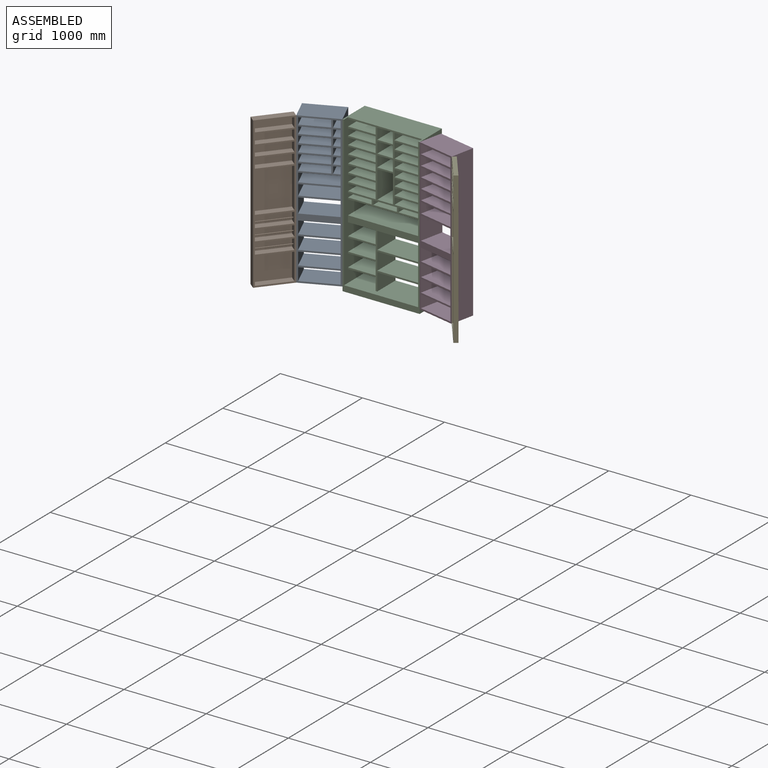
[diagram: assembled view]
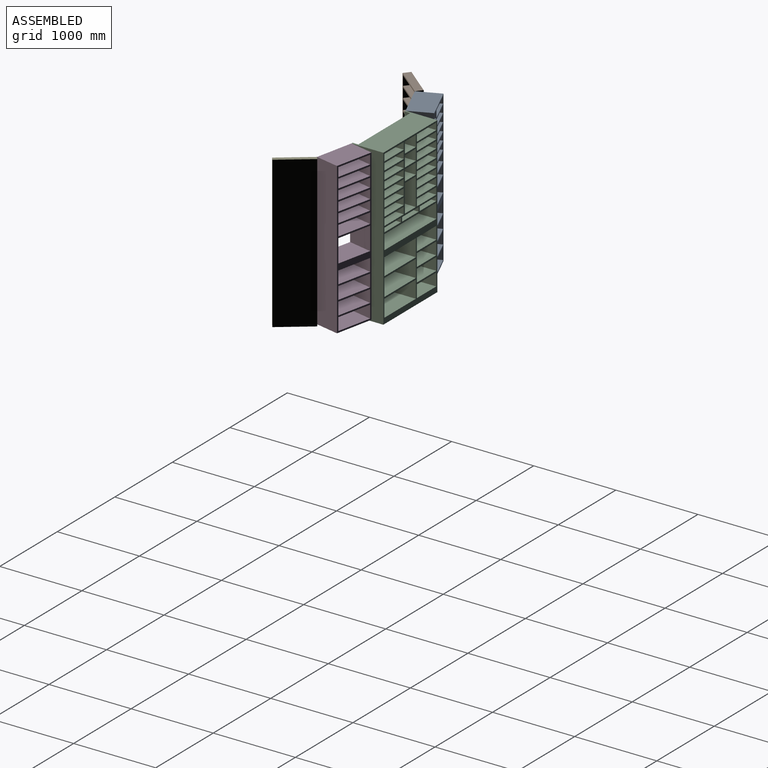
[diagram: assembled view, second angle]
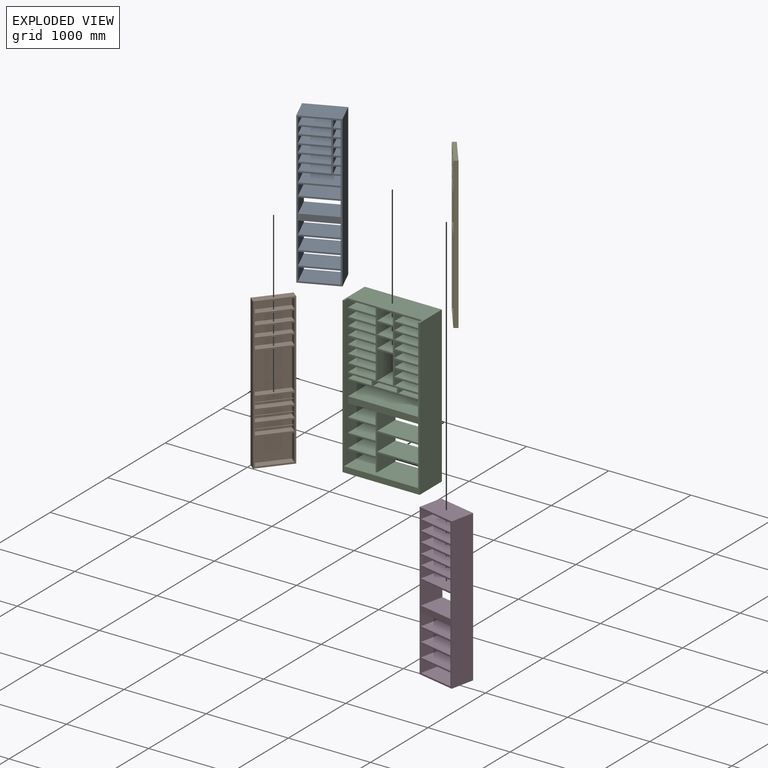
[diagram: exploded view]
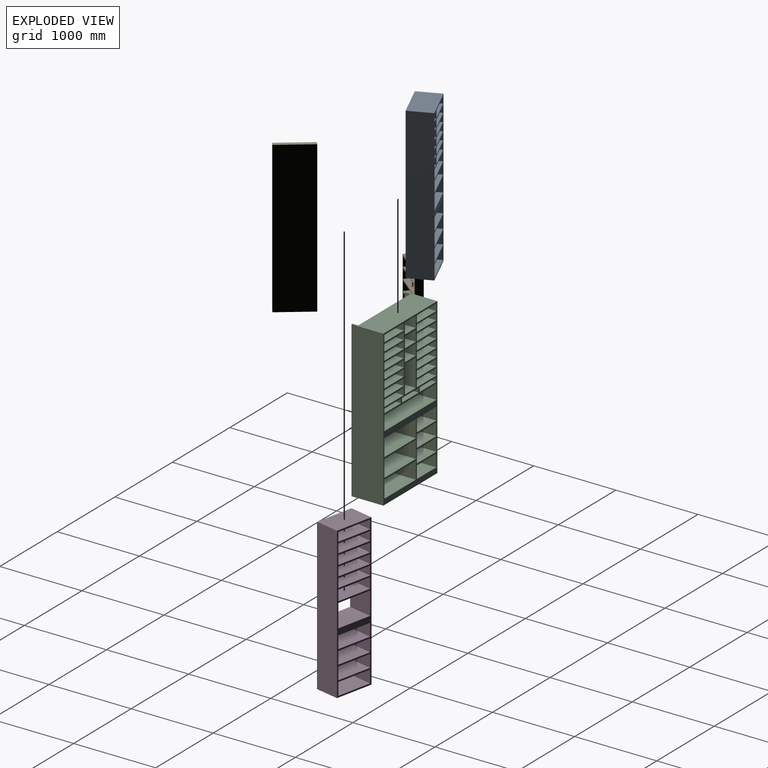
[diagram: exploded view, second angle]
ASSEMBLY  parts=5 mates=4
PART A: 82 faces, bbox 469.9x292.1x1841.5 mm
  f0: plane 292.1x76.2mm, normal (0,0,-1), area 22258mm2, adj f1,f79,f80,f81
  f1: plane 292.1x82.55mm, normal (-1,0,0), area 24112.9mm2, adj f0,f2,f80,f81
  f2: plane 292.1x76.2mm, normal (0,0,1), area 22258mm2, adj f1,f79,f80,f81
  f3: plane 336.55x292.1mm, normal (0,0,-1), area 98306.3mm2, adj f4,f60,f80,f81
  f4: plane 292.1x82.55mm, normal (-1,0,0), area 24112.9mm2, adj f3,f5,f80,f81
  f5: plane 336.55x292.1mm, normal (0,0,1), area 98306.3mm2, adj f4,f60,f80,f81
  f6: plane 469.9x292.1mm, normal (0,0,1), area 137257.8mm2, adj f7,f61,f80,f81
  f7: plane 1841.5x292.1mm, normal (-1,0,0), area 537902.1mm2, adj f6,f8,f80,f81
  f8: plane 469.9x292.1mm, normal (0,0,-1), area 137257.8mm2, adj f7,f61,f80,f81
  f9: plane 292.1x177.8mm, normal (1,0,0), area 51935.4mm2, adj f10,f62,f80,f81
  f10: plane 431.8x292.1mm, normal (0,0,-1), area 126128.8mm2, adj f9,f11,f80,f81
  f11: plane 292.1x177.8mm, normal (-1,0,0), area 51935.4mm2, adj f10,f62,f80,f81
  f12: plane 292.1x152.4mm, normal (1,0,0), area 44516mm2, adj f13,f63,f80,f81
  f13: plane 431.8x292.1mm, normal (0,0,-1), area 126128.8mm2, adj f12,f14,f80,f81
  f14: plane 292.1x152.4mm, normal (-1,0,0), area 44516mm2, adj f13,f63,f80,f81
  f15: plane 292.1x152.4mm, normal (1,0,0), area 44516mm2, adj f16,f64,f80,f81
  f16: plane 431.8x292.1mm, normal (0,0,-1), area 126128.8mm2, adj f15,f17,f80,f81
  f17: plane 292.1x152.4mm, normal (-1,0,0), area 44516mm2, adj f16,f64,f80,f81
  f18: plane 292.1x152.4mm, normal (1,0,0), area 44516mm2, adj f19,f65,f80,f81
  f19: plane 431.8x292.1mm, normal (0,0,-1), area 126128.8mm2, adj f18,f20,f80,f81
  f20: plane 292.1x152.4mm, normal (-1,0,0), area 44516mm2, adj f19,f65,f80,f81
  f21: plane 292.1x152.4mm, normal (1,0,0), area 44516mm2, adj f22,f66,f80,f81
  f22: plane 431.8x292.1mm, normal (0,0,-1), area 126128.8mm2, adj f21,f23,f80,f81
  f23: plane 292.1x152.4mm, normal (-1,0,0), area 44516mm2, adj f22,f66,f80,f81
  f24: plane 292.1x107.95mm, normal (-1,0,0), area 31532.2mm2, adj f25,f67,f80,f81
  f25: plane 431.8x292.1mm, normal (0,0,1), area 126128.8mm2, adj f24,f26,f80,f81
  f26: plane 292.1x107.95mm, normal (1,0,0), area 31532.2mm2, adj f25,f67,f80,f81
  f27: plane 292.1x82.55mm, normal (1,0,0), area 24112.9mm2, adj f28,f68,f80,f81
  f28: plane 336.55x292.1mm, normal (0,0,-1), area 98306.3mm2, adj f27,f29,f80,f81
  f29: plane 292.1x82.55mm, normal (-1,0,0), area 24112.9mm2, adj f28,f68,f80,f81
  f30: plane 292.1x76.2mm, normal (0,0,-1), area 22258mm2, adj f31,f69,f80,f81
  f31: plane 292.1x82.55mm, normal (-1,0,0), area 24112.9mm2, adj f30,f32,f80,f81
  f32: plane 292.1x76.2mm, normal (0,0,1), area 22258mm2, adj f31,f69,f80,f81
  f33: plane 292.1x82.55mm, normal (1,0,0), area 24112.9mm2, adj f34,f70,f80,f81
  f34: plane 336.55x292.1mm, normal (0,0,-1), area 98306.3mm2, adj f33,f35,f80,f81
  f35: plane 292.1x82.55mm, normal (-1,0,0), area 24112.9mm2, adj f34,f70,f80,f81
  f36: plane 292.1x76.2mm, normal (0,0,-1), area 22258mm2, adj f37,f71,f80,f81
  f37: plane 292.1x82.55mm, normal (-1,0,0), area 24112.9mm2, adj f36,f38,f80,f81
  f38: plane 292.1x76.2mm, normal (0,0,1), area 22258mm2, adj f37,f71,f80,f81
  f39: plane 292.1x82.55mm, normal (1,0,0), area 24112.9mm2, adj f40,f72,f80,f81
  f40: plane 336.55x292.1mm, normal (0,0,-1), area 98306.3mm2, adj f39,f41,f80,f81
  f41: plane 292.1x82.55mm, normal (-1,0,0), area 24112.9mm2, adj f40,f72,f80,f81
  f42: plane 292.1x76.2mm, normal (0,0,-1), area 22258mm2, adj f43,f73,f80,f81
  f43: plane 292.1x82.55mm, normal (-1,0,0), area 24112.9mm2, adj f42,f44,f80,f81
  f44: plane 292.1x76.2mm, normal (0,0,1), area 22258mm2, adj f43,f73,f80,f81
  f45: plane 292.1x82.55mm, normal (1,0,0), area 24112.9mm2, adj f46,f74,f80,f81
  f46: plane 336.55x292.1mm, normal (0,0,-1), area 98306.3mm2, adj f45,f47,f80,f81
  f47: plane 292.1x82.55mm, normal (-1,0,0), area 24112.9mm2, adj f46,f74,f80,f81
  f48: plane 292.1x76.2mm, normal (0,0,-1), area 22258mm2, adj f49,f75,f80,f81
  f49: plane 292.1x82.55mm, normal (-1,0,0), area 24112.9mm2, adj f48,f50,f80,f81
  f50: plane 292.1x76.2mm, normal (0,0,1), area 22258mm2, adj f49,f75,f80,f81
  f51: plane 292.1x82.55mm, normal (1,0,0), area 24112.9mm2, adj f52,f76,f80,f81
  f52: plane 336.55x292.1mm, normal (0,0,-1), area 98306.3mm2, adj f51,f53,f80,f81
  f53: plane 292.1x82.55mm, normal (-1,0,0), area 24112.9mm2, adj f52,f76,f80,f81
  f54: plane 292.1x76.2mm, normal (0,0,-1), area 22258mm2, adj f55,f77,f80,f81
  f55: plane 292.1x82.55mm, normal (-1,0,0), area 24112.9mm2, adj f54,f56,f80,f81
  f56: plane 292.1x76.2mm, normal (0,0,1), area 22258mm2, adj f55,f77,f80,f81
  f57: plane 431.8x292.1mm, normal (0,0,1), area 126128.8mm2, adj f58,f78,f80,f81
  f58: plane 292.1x127mm, normal (1,0,0), area 37096.7mm2, adj f57,f59,f80,f81
  f59: plane 431.8x292.1mm, normal (0,0,-1), area 126128.8mm2, adj f58,f78,f80,f81
  f60: plane 292.1x82.55mm, normal (1,0,0), area 24112.9mm2, adj f3,f5,f80,f81
  f61: plane 1841.5x292.1mm, normal (1,0,0), area 537902.1mm2, adj f6,f8,f80,f81
  f62: plane 431.8x292.1mm, normal (0,0,1), area 126128.8mm2, adj f9,f11,f80,f81
  f63: plane 431.8x292.1mm, normal (0,0,1), area 126128.8mm2, adj f12,f14,f80,f81
  f64: plane 431.8x292.1mm, normal (0,0,1), area 126128.8mm2, adj f15,f17,f80,f81
  f65: plane 431.8x292.1mm, normal (0,0,1), area 126128.8mm2, adj f18,f20,f80,f81
  f66: plane 431.8x292.1mm, normal (0,0,1), area 126128.8mm2, adj f21,f23,f80,f81
  f67: plane 431.8x292.1mm, normal (0,0,-1), area 126128.8mm2, adj f24,f26,f80,f81
  f68: plane 336.55x292.1mm, normal (0,0,1), area 98306.3mm2, adj f27,f29,f80,f81
  f69: plane 292.1x82.55mm, normal (1,0,0), area 24112.9mm2, adj f30,f32,f80,f81
  f70: plane 336.55x292.1mm, normal (0,0,1), area 98306.3mm2, adj f33,f35,f80,f81
  f71: plane 292.1x82.55mm, normal (1,0,0), area 24112.9mm2, adj f36,f38,f80,f81
  f72: plane 336.55x292.1mm, normal (0,0,1), area 98306.3mm2, adj f39,f41,f80,f81
  f73: plane 292.1x82.55mm, normal (1,0,0), area 24112.9mm2, adj f42,f44,f80,f81
  f74: plane 336.55x292.1mm, normal (0,0,1), area 98306.3mm2, adj f45,f47,f80,f81
  f75: plane 292.1x82.55mm, normal (1,0,0), area 24112.9mm2, adj f48,f50,f80,f81
  f76: plane 336.55x292.1mm, normal (0,0,1), area 98306.3mm2, adj f51,f53,f80,f81
  f77: plane 292.1x82.55mm, normal (1,0,0), area 24112.9mm2, adj f54,f56,f80,f81
  f78: plane 292.1x127mm, normal (-1,0,0), area 37096.7mm2, adj f57,f59,f80,f81
  f79: plane 292.1x82.55mm, normal (1,0,0), area 24112.9mm2, adj f0,f2,f80,f81
  f80: plane 1841.5x469.9mm, normal (0,-1,0), area 219435mm2, adj f0,f1,f2,f3,f4,f5,f6,f7
  f81: plane 1841.5x469.9mm, normal (0,1,0), area 219435mm2, adj f0,f1,f2,f3,f4,f5,f6,f7
PART B: 54 faces, bbox 447.7x92.1x1841.5 mm
  f0: plane 488.95x88.9mm, normal (1,0,0), area 43467.7mm2, adj f1,f39,f40,f41
  f1: plane 409.58x88.9mm, normal (0,0,-1), area 36411.2mm2, adj f0,f2,f40,f41
  f2: plane 488.95x88.9mm, normal (-1,0,0), area 43467.7mm2, adj f1,f39,f40,f41
  f3: plane 127x88.9mm, normal (1,0,0), area 11219mm2, adj f4,f30,f40,f49,f53
  f4: plane 409.58x88.9mm, normal (0,0,-1), area 36411.2mm2, adj f3,f5,f40,f49
  f5: plane 127x88.9mm, normal (-1,0,0), area 11219mm2, adj f4,f30,f40,f49,f53
  f6: plane 323.85x88.9mm, normal (1,0,0), area 28790.3mm2, adj f7,f31,f40,f48
  f7: plane 409.58x88.9mm, normal (0,0,-1), area 36411.2mm2, adj f6,f8,f40,f48
  f8: plane 323.85x88.9mm, normal (-1,0,0), area 28790.3mm2, adj f7,f31,f40,f48
  f9: plane 127x88.9mm, normal (1,0,0), area 11219mm2, adj f10,f32,f40,f47,f52
  f10: plane 409.58x88.9mm, normal (0,0,-1), area 36411.2mm2, adj f9,f11,f40,f47
  f11: plane 127x88.9mm, normal (-1,0,0), area 11219mm2, adj f10,f32,f40,f47,f52
  f12: plane 127x88.9mm, normal (1,0,0), area 11219mm2, adj f13,f33,f40,f46,f51
  f13: plane 409.58x88.9mm, normal (0,0,-1), area 36411.2mm2, adj f12,f14,f40,f46
  f14: plane 127x88.9mm, normal (-1,0,0), area 11219mm2, adj f13,f33,f40,f46,f51
  f15: plane 409.58x88.9mm, normal (0,0,1), area 36411.2mm2, adj f16,f34,f40,f45
  f16: plane 114.3x88.9mm, normal (1,0,0), area 10161.3mm2, adj f15,f17,f40,f45
  f17: plane 409.58x88.9mm, normal (0,0,-1), area 36411.2mm2, adj f16,f34,f40,f45
  f18: plane 409.58x88.9mm, normal (0,0,1), area 36411.2mm2, adj f19,f35,f40,f44
  f19: plane 114.3x88.9mm, normal (1,0,0), area 10161.3mm2, adj f18,f20,f40,f44
  f20: plane 409.58x88.9mm, normal (0,0,-1), area 36411.2mm2, adj f19,f35,f40,f44
  f21: plane 409.58x88.9mm, normal (0,0,1), area 36411.2mm2, adj f22,f36,f40,f43
  f22: plane 114.3x88.9mm, normal (1,0,0), area 10161.3mm2, adj f21,f23,f40,f43
  f23: plane 409.58x88.9mm, normal (0,0,-1), area 36411.2mm2, adj f22,f36,f40,f43
  f24: plane 114.3x88.9mm, normal (1,0,0), area 10161.3mm2, adj f25,f37,f40,f42
  f25: plane 409.58x88.9mm, normal (0,0,-1), area 36411.2mm2, adj f24,f26,f40,f42
  f26: plane 114.3x88.9mm, normal (-1,0,0), area 10161.3mm2, adj f25,f37,f40,f42
  f27: plane 1841.5x92.08mm, normal (1,0,0), area 169556.1mm2, adj f28,f38,f40,f50
  f28: plane 447.68x92.08mm, normal (0,0,1), area 41219.7mm2, adj f27,f29,f40,f50
  f29: plane 1841.5x92.08mm, normal (-1,0,0), area 169556.1mm2, adj f28,f38,f40,f50
  f30: plane 409.58x88.9mm, normal (0,0,1), area 36411.2mm2, adj f3,f5,f40,f49
  f31: plane 409.58x88.9mm, normal (0,0,1), area 36411.2mm2, adj f6,f8,f40,f48
  f32: plane 409.58x88.9mm, normal (0,0,1), area 36411.2mm2, adj f9,f11,f40,f47
  f33: plane 409.58x88.9mm, normal (0,0,1), area 36411.2mm2, adj f12,f14,f40,f46
  f34: plane 114.3x88.9mm, normal (-1,0,0), area 10161.3mm2, adj f15,f17,f40,f45
  f35: plane 114.3x88.9mm, normal (-1,0,0), area 10161.3mm2, adj f18,f20,f40,f44
  f36: plane 114.3x88.9mm, normal (-1,0,0), area 10161.3mm2, adj f21,f23,f40,f43
  f37: plane 409.58x88.9mm, normal (0,0,1), area 36411.2mm2, adj f24,f26,f40,f42
  f38: plane 447.68x92.08mm, normal (0,0,-1), area 41219.7mm2, adj f27,f29,f40,f50
  f39: plane 409.58x88.9mm, normal (0,0,1), area 36411.2mm2, adj f0,f2,f40,f41
  f40: plane 1841.5x447.68mm, normal (0,-1,0), area 148185.2mm2, adj f0,f1,f2,f3,f4,f5,f6,f7
  f41: plane 488.95x409.58mm, normal (0,-1,0), area 200261.7mm2, adj f0,f1,f2,f39
  f42: plane 409.58x114.3mm, normal (0,-1,0), area 46814.4mm2, adj f24,f25,f26,f37
  f43: plane 409.58x114.3mm, normal (0,-1,0), area 46814.4mm2, adj f21,f22,f23,f36
  f44: plane 409.58x114.3mm, normal (0,-1,0), area 46814.4mm2, adj f18,f19,f20,f35
  f45: plane 409.58x114.3mm, normal (0,-1,0), area 46814.4mm2, adj f15,f16,f17,f34
  f46: plane 409.58x127mm, normal (0,-1,0), area 52016mm2, adj f12,f13,f14,f33
  f47: plane 409.58x127mm, normal (0,-1,0), area 52016mm2, adj f9,f10,f11,f32
  f48: plane 409.58x323.85mm, normal (0,-1,0), area 132640.9mm2, adj f6,f7,f8,f31
  f49: plane 409.58x127mm, normal (0,-1,0), area 52016mm2, adj f3,f4,f5,f30
  f50: plane 1841.5x447.68mm, normal (0,1,0), area 824393.5mm2, adj f27,f28,f29,f38
  f51: cylinder r=4.76mm len=409.58mm, axis (-1,0,0), area 12256mm2, adj f12,f14
  f52: cylinder r=4.76mm len=409.58mm, axis (-1,0,0), area 12256mm2, adj f9,f11
  f53: cylinder r=4.76mm len=409.58mm, axis (-1,0,0), area 12256mm2, adj f3,f5
PART C: 111 faces, bbox 939.8x387.4x1892.3 mm
  f0: plane 901.7x742.95mm, normal (0,-1,0), area 121451.4mm2, adj f40,f42,f43,f44,f45,f46,f47,f48
  f1: plane 317.5x190.5mm, normal (0,0,-1), area 60483.8mm2, adj f2,f101,f102,f103
  f2: plane 317.5x133.35mm, normal (-1,0,0), area 42338.6mm2, adj f1,f3,f102,f103
  f3: plane 317.5x190.5mm, normal (0,0,1), area 60483.8mm2, adj f2,f101,f102,f103
  f4: plane 336.55x317.5mm, normal (0,0,-1), area 106854.6mm2, adj f5,f85,f102,f103
  f5: plane 317.5x82.55mm, normal (-1,0,0), area 26209.6mm2, adj f4,f6,f102,f103
  f6: plane 336.55x317.5mm, normal (0,0,1), area 106854.6mm2, adj f5,f85,f102,f103
  f7: plane 336.55x317.5mm, normal (0,0,-1), area 106854.6mm2, adj f8,f85,f102,f103
  f8: plane 317.5x82.55mm, normal (-1,0,0), area 26209.6mm2, adj f7,f9,f102,f103
  f9: plane 336.55x317.5mm, normal (0,0,1), area 106854.6mm2, adj f8,f85,f102,f103
  f10: plane 336.55x317.5mm, normal (0,0,-1), area 106854.6mm2, adj f11,f85,f102,f103
  f11: plane 317.5x82.55mm, normal (-1,0,0), area 26209.6mm2, adj f10,f12,f102,f103
  f12: plane 336.55x317.5mm, normal (0,0,1), area 106854.6mm2, adj f11,f85,f102,f103
  f13: plane 336.55x317.5mm, normal (0,0,-1), area 106854.6mm2, adj f14,f85,f102,f103
  f14: plane 317.5x82.55mm, normal (-1,0,0), area 26209.6mm2, adj f13,f15,f102,f103
  f15: plane 336.55x317.5mm, normal (0,0,1), area 106854.6mm2, adj f14,f85,f102,f103
  f16: plane 336.55x317.5mm, normal (0,0,-1), area 106854.6mm2, adj f17,f85,f102,f103
  f17: plane 317.5x82.55mm, normal (-1,0,0), area 26209.6mm2, adj f16,f18,f102,f103
  f18: plane 336.55x317.5mm, normal (0,0,1), area 106854.6mm2, adj f17,f85,f102,f103
  f19: plane 336.55x317.5mm, normal (0,0,-1), area 106854.6mm2, adj f20,f85,f102,f103
  f20: plane 317.5x82.55mm, normal (-1,0,0), area 26209.6mm2, adj f19,f21,f102,f103
  f21: plane 336.55x317.5mm, normal (0,0,1), area 106854.6mm2, adj f20,f85,f102,f103
  f22: plane 336.55x317.5mm, normal (0,0,-1), area 106854.6mm2, adj f23,f85,f102,f103
  f23: plane 317.5x82.55mm, normal (-1,0,0), area 26209.6mm2, adj f22,f24,f102,f103
  f24: plane 336.55x317.5mm, normal (0,0,1), area 106854.6mm2, adj f23,f85,f102,f103
  f25: plane 336.55x317.5mm, normal (0,0,-1), area 106854.6mm2, adj f26,f85,f102,f103
  f26: plane 317.5x82.55mm, normal (-1,0,0), area 26209.6mm2, adj f25,f27,f102,f103
  f27: plane 336.55x317.5mm, normal (0,0,1), area 106854.6mm2, adj f26,f85,f102,f103
  f28: plane 317.5x190.5mm, normal (0,0,1), area 60483.8mm2, adj f29,f86,f102,f103
  f29: plane 317.5x133.35mm, normal (1,0,0), area 42338.6mm2, adj f28,f30,f102,f103
  f30: plane 317.5x190.5mm, normal (0,0,-1), area 60483.8mm2, adj f29,f86,f102,f103
  f31: plane 939.8x387.35mm, normal (0,0,1), area 301047.8mm2, adj f32,f40,f85,f87,f102,f103,f104
  f32: plane 1892.3x387.35mm, normal (-1,0,0), area 732982.4mm2, adj f31,f103,f104,f109
  f33: plane 317.5x287.87mm, normal (0,0,-1), area 91397.7mm2, adj f34,f85,f102,f103
  f34: plane 317.5x50.8mm, normal (-1,0,0), area 16129mm2, adj f33,f88,f102,f103
  f35: plane 317.5x50.8mm, normal (1,0,0), area 16129mm2, adj f36,f89,f102,f103
  f36: plane 317.5x287.87mm, normal (0,0,-1), area 91397.7mm2, adj f35,f37,f102,f103
  f37: plane 317.5x50.8mm, normal (-1,0,0), area 16129mm2, adj f36,f89,f102,f103
  f38: plane 317.5x50.8mm, normal (1,0,0), area 16129mm2, adj f39,f90,f102,f103
  f39: plane 317.5x287.87mm, normal (0,0,-1), area 91397.7mm2, adj f38,f40,f102,f103
  f40: plane 1822.45x387.35mm, normal (-1,0,0), area 609152mm2, adj f0,f31,f39,f41,f51,f53,f55,f62
  f41: plane 901.7x317.5mm, normal (0,0,-1), area 286289.8mm2, adj f40,f85,f102,f103
  f42: plane 336.55x317.5mm, normal (0,0,-1), area 106854.6mm2, adj f0,f43,f85,f103
  f43: plane 317.5x152.4mm, normal (-1,0,0), area 48387mm2, adj f0,f42,f92,f103
  f44: plane 336.55x317.5mm, normal (0,0,-1), area 106854.6mm2, adj f0,f45,f85,f103
  f45: plane 317.5x152.4mm, normal (-1,0,0), area 48387mm2, adj f0,f44,f93,f103
  f46: plane 336.55x317.5mm, normal (0,0,-1), area 106854.6mm2, adj f0,f47,f85,f103
  f47: plane 317.5x152.4mm, normal (-1,0,0), area 48387mm2, adj f0,f46,f94,f103
  f48: plane 336.55x317.5mm, normal (0,0,-1), area 106854.6mm2, adj f0,f49,f85,f103
  f49: plane 317.5x152.4mm, normal (-1,0,0), area 48387mm2, adj f0,f48,f95,f103
  f50: plane 317.5x209.55mm, normal (1,0,0), area 66532.1mm2, adj f0,f51,f96,f103
  f51: plane 546.1x317.5mm, normal (0,0,-1), area 173386.8mm2, adj f0,f40,f50,f103
  f52: plane 317.5x209.55mm, normal (1,0,0), area 66532.1mm2, adj f0,f53,f97,f103
  f53: plane 546.1x317.5mm, normal (0,0,-1), area 173386.8mm2, adj f0,f40,f52,f103
  f54: plane 317.5x209.55mm, normal (1,0,0), area 66532.1mm2, adj f0,f55,f95,f103
  f55: plane 546.1x317.5mm, normal (0,0,-1), area 173386.8mm2, adj f0,f40,f54,f103
  f56: plane 336.55x317.5mm, normal (1,0,0), area 106854.6mm2, adj f57,f98,f102,f103
  f57: plane 317.5x190.5mm, normal (0,0,-1), area 60483.8mm2, adj f56,f58,f102,f103
  f58: plane 336.55x317.5mm, normal (-1,0,0), area 106854.6mm2, adj f57,f98,f102,f103
  f59: plane 317.5x133.35mm, normal (1,0,0), area 42338.6mm2, adj f60,f99,f102,f103
  f60: plane 317.5x190.5mm, normal (0,0,-1), area 60483.8mm2, adj f59,f61,f102,f103
  f61: plane 317.5x133.35mm, normal (-1,0,0), area 42338.6mm2, adj f60,f99,f102,f103
  f62: plane 336.55x317.5mm, normal (0,0,1), area 106854.6mm2, adj f40,f63,f102,f103
  f63: plane 317.5x82.55mm, normal (1,0,0), area 26209.6mm2, adj f62,f64,f102,f103
  f64: plane 336.55x317.5mm, normal (0,0,-1), area 106854.6mm2, adj f40,f63,f102,f103
  f65: plane 336.55x317.5mm, normal (0,0,1), area 106854.6mm2, adj f40,f66,f102,f103
  f66: plane 317.5x82.55mm, normal (1,0,0), area 26209.6mm2, adj f65,f67,f102,f103
  f67: plane 336.55x317.5mm, normal (0,0,-1), area 106854.6mm2, adj f40,f66,f102,f103
  f68: plane 336.55x317.5mm, normal (0,0,1), area 106854.6mm2, adj f40,f69,f102,f103
  f69: plane 317.5x82.55mm, normal (1,0,0), area 26209.6mm2, adj f68,f70,f102,f103
  f70: plane 336.55x317.5mm, normal (0,0,-1), area 106854.6mm2, adj f40,f69,f102,f103
  f71: plane 336.55x317.5mm, normal (0,0,1), area 106854.6mm2, adj f40,f72,f102,f103
  f72: plane 317.5x82.55mm, normal (1,0,0), area 26209.6mm2, adj f71,f73,f102,f103
  f73: plane 336.55x317.5mm, normal (0,0,-1), area 106854.6mm2, adj f40,f72,f102,f103
  f74: plane 336.55x317.5mm, normal (0,0,1), area 106854.6mm2, adj f40,f75,f102,f103
  f75: plane 317.5x82.55mm, normal (1,0,0), area 26209.6mm2, adj f74,f76,f102,f103
  f76: plane 336.55x317.5mm, normal (0,0,-1), area 106854.6mm2, adj f40,f75,f102,f103
  f77: plane 336.55x317.5mm, normal (0,0,1), area 106854.6mm2, adj f40,f78,f102,f103
  f78: plane 317.5x82.55mm, normal (1,0,0), area 26209.6mm2, adj f77,f79,f102,f103
  f79: plane 336.55x317.5mm, normal (0,0,-1), area 106854.6mm2, adj f40,f78,f102,f103
  f80: plane 336.55x317.5mm, normal (0,0,1), area 106854.6mm2, adj f40,f81,f102,f103
  f81: plane 317.5x82.55mm, normal (1,0,0), area 26209.6mm2, adj f80,f82,f102,f103
  f82: plane 336.55x317.5mm, normal (0,0,-1), area 106854.6mm2, adj f40,f81,f102,f103
  f83: plane 317.5x82.55mm, normal (1,0,0), area 26209.6mm2, adj f84,f100,f102,f103
  f84: plane 336.55x317.5mm, normal (0,0,-1), area 106854.6mm2, adj f40,f83,f102,f103
  f85: plane 1822.45x387.35mm, normal (1,0,0), area 603103.6mm2, adj f0,f4,f6,f7,f9,f10,f12,f13
  f86: plane 317.5x133.35mm, normal (-1,0,0), area 42338.6mm2, adj f28,f30,f102,f103
  f87: plane 1892.3x387.35mm, normal (1,0,0), area 732982.4mm2, adj f31,f103,f104,f109
  f88: plane 317.5x287.87mm, normal (0,0,1), area 91397.7mm2, adj f34,f85,f102,f103
  f89: plane 317.5x287.87mm, normal (0,0,1), area 91397.7mm2, adj f35,f37,f102,f103
  f90: plane 317.5x287.87mm, normal (0,0,1), area 91397.7mm2, adj f38,f40,f102,f103
  f91: plane 901.7x317.5mm, normal (0,0,1), area 286289.8mm2, adj f0,f40,f85,f103
  f92: plane 336.55x317.5mm, normal (0,0,1), area 106854.6mm2, adj f0,f43,f85,f103
  f93: plane 336.55x317.5mm, normal (0,0,1), area 106854.6mm2, adj f0,f45,f85,f103
  f94: plane 336.55x317.5mm, normal (0,0,1), area 106854.6mm2, adj f0,f47,f85,f103
  f95: plane 901.7x387.35mm, normal (0,0,1), area 343225.1mm2, adj f0,f40,f49,f54,f85,f103,f104
  f96: plane 546.1x317.5mm, normal (0,0,1), area 173386.8mm2, adj f0,f40,f50,f103
  f97: plane 546.1x317.5mm, normal (0,0,1), area 173386.8mm2, adj f0,f40,f52,f103
  f98: plane 317.5x190.5mm, normal (0,0,1), area 60483.8mm2, adj f56,f58,f102,f103
  f99: plane 317.5x190.5mm, normal (0,0,1), area 60483.8mm2, adj f59,f61,f102,f103
  f100: plane 336.55x317.5mm, normal (0,0,1), area 106854.6mm2, adj f40,f83,f102,f103
  f101: plane 317.5x133.35mm, normal (1,0,0), area 42338.6mm2, adj f1,f3,f102,f103
  f102: plane 901.7x901.7mm, normal (0,-1,0), area 184354.5mm2, adj f1,f2,f3,f4,f5,f6,f7,f8
  f103: plane 1892.3x939.8mm, normal (0,1,0), area 440886.2mm2, adj f1,f2,f3,f4,f5,f6,f7,f8
  f104: plane 1892.3x939.8mm, normal (0,-1,0), area 135080.4mm2, adj f31,f32,f40,f85,f87,f95,f109
  f105: plane 349.25x50.8mm, normal (1,0,0), area 17741.9mm2, adj f106,f108,f109,f110
  f106: plane 901.7x50.8mm, normal (0,1,0), area 45806.4mm2, adj f105,f107,f109,f110
  f107: plane 349.25x50.8mm, normal (-1,0,0), area 17741.9mm2, adj f106,f108,f109,f110
  f108: plane 901.7x50.8mm, normal (0,-1,0), area 45806.4mm2, adj f105,f107,f109,f110
  f109: plane 939.8x387.35mm, normal (0,0,-1), area 49112.8mm2, adj f32,f87,f103,f104,f105,f106,f107,f108
  f110: plane 901.7x349.25mm, normal (0,0,-1), area 314918.7mm2, adj f105,f106,f107,f108
PART D: 50 faces, bbox 469.9x292.1x1841.5 mm
  f0: plane 431.8x292.1mm, normal (0,0,-1), area 126128.8mm2, adj f1,f47,f48,f49
  f1: plane 292.1x107.95mm, normal (-1,0,0), area 31532.2mm2, adj f0,f2,f48,f49
  f2: plane 431.8x292.1mm, normal (0,0,1), area 126128.8mm2, adj f1,f47,f48,f49
  f3: plane 431.8x292.1mm, normal (0,0,1), area 126128.8mm2, adj f4,f36,f48,f49
  f4: plane 292.1x127mm, normal (1,0,0), area 37096.7mm2, adj f3,f5,f48,f49
  f5: plane 431.8x292.1mm, normal (0,0,-1), area 126128.8mm2, adj f4,f36,f48,f49
  f6: plane 1841.5x292.1mm, normal (-1,0,0), area 537902.1mm2, adj f7,f37,f48,f49
  f7: plane 469.9x292.1mm, normal (0,0,-1), area 137257.8mm2, adj f6,f8,f48,f49
  f8: plane 1841.5x292.1mm, normal (1,0,0), area 537902.1mm2, adj f7,f37,f48,f49
  f9: plane 292.1x107.95mm, normal (1,0,0), area 31532.2mm2, adj f10,f38,f48,f49
  f10: plane 431.8x292.1mm, normal (0,0,-1), area 126128.8mm2, adj f9,f11,f48,f49
  f11: plane 292.1x107.95mm, normal (-1,0,0), area 31532.2mm2, adj f10,f38,f48,f49
  f12: plane 292.1x107.95mm, normal (1,0,0), area 31532.2mm2, adj f13,f39,f48,f49
  f13: plane 431.8x292.1mm, normal (0,0,-1), area 126128.8mm2, adj f12,f14,f48,f49
  f14: plane 292.1x107.95mm, normal (-1,0,0), area 31532.2mm2, adj f13,f39,f48,f49
  f15: plane 292.1x107.95mm, normal (1,0,0), area 31532.2mm2, adj f16,f40,f48,f49
  f16: plane 431.8x292.1mm, normal (0,0,-1), area 126128.8mm2, adj f15,f17,f48,f49
  f17: plane 292.1x107.95mm, normal (-1,0,0), area 31532.2mm2, adj f16,f40,f48,f49
  f18: plane 292.1x107.95mm, normal (1,0,0), area 31532.2mm2, adj f19,f41,f48,f49
  f19: plane 431.8x292.1mm, normal (0,0,-1), area 126128.8mm2, adj f18,f20,f48,f49
  f20: plane 292.1x107.95mm, normal (-1,0,0), area 31532.2mm2, adj f19,f41,f48,f49
  f21: plane 292.1x152.4mm, normal (1,0,0), area 44516mm2, adj f22,f42,f48,f49
  f22: plane 431.8x292.1mm, normal (0,0,-1), area 126128.8mm2, adj f21,f23,f48,f49
  f23: plane 292.1x152.4mm, normal (-1,0,0), area 44516mm2, adj f22,f42,f48,f49
  f24: plane 292.1x152.4mm, normal (1,0,0), area 44516mm2, adj f25,f43,f48,f49
  f25: plane 431.8x292.1mm, normal (0,0,-1), area 126128.8mm2, adj f24,f26,f48,f49
  f26: plane 292.1x152.4mm, normal (-1,0,0), area 44516mm2, adj f25,f43,f48,f49
  f27: plane 292.1x152.4mm, normal (1,0,0), area 44516mm2, adj f28,f44,f48,f49
  f28: plane 431.8x292.1mm, normal (0,0,-1), area 126128.8mm2, adj f27,f29,f48,f49
  f29: plane 292.1x152.4mm, normal (-1,0,0), area 44516mm2, adj f28,f44,f48,f49
  f30: plane 292.1x152.4mm, normal (1,0,0), area 44516mm2, adj f31,f45,f48,f49
  f31: plane 431.8x292.1mm, normal (0,0,-1), area 126128.8mm2, adj f30,f32,f48,f49
  f32: plane 292.1x152.4mm, normal (-1,0,0), area 44516mm2, adj f31,f45,f48,f49
  f33: plane 292.1x279.4mm, normal (1,0,0), area 81612.7mm2, adj f34,f46,f48,f49
  f34: plane 431.8x292.1mm, normal (0,0,-1), area 126128.8mm2, adj f33,f35,f48,f49
  f35: plane 292.1x279.4mm, normal (-1,0,0), area 81612.7mm2, adj f34,f46,f48,f49
  f36: plane 292.1x127mm, normal (-1,0,0), area 37096.7mm2, adj f3,f5,f48,f49
  f37: plane 469.9x292.1mm, normal (0,0,1), area 137257.8mm2, adj f6,f8,f48,f49
  f38: plane 431.8x292.1mm, normal (0,0,1), area 126128.8mm2, adj f9,f11,f48,f49
  f39: plane 431.8x292.1mm, normal (0,0,1), area 126128.8mm2, adj f12,f14,f48,f49
  f40: plane 431.8x292.1mm, normal (0,0,1), area 126128.8mm2, adj f15,f17,f48,f49
  f41: plane 431.8x292.1mm, normal (0,0,1), area 126128.8mm2, adj f18,f20,f48,f49
  f42: plane 431.8x292.1mm, normal (0,0,1), area 126128.8mm2, adj f21,f23,f48,f49
  f43: plane 431.8x292.1mm, normal (0,0,1), area 126128.8mm2, adj f24,f26,f48,f49
  f44: plane 431.8x292.1mm, normal (0,0,1), area 126128.8mm2, adj f27,f29,f48,f49
  f45: plane 431.8x292.1mm, normal (0,0,1), area 126128.8mm2, adj f30,f32,f48,f49
  f46: plane 431.8x292.1mm, normal (0,0,1), area 126128.8mm2, adj f33,f35,f48,f49
  f47: plane 292.1x107.95mm, normal (1,0,0), area 31532.2mm2, adj f0,f2,f48,f49
  f48: plane 1841.5x469.9mm, normal (0,-1,0), area 193548mm2, adj f0,f1,f2,f3,f4,f5,f6,f7
  f49: plane 1841.5x469.9mm, normal (0,1,0), area 193548mm2, adj f0,f1,f2,f3,f4,f5,f6,f7
PART E: 31 faces, bbox 447.7x50.8x1841.5 mm
  f0: plane 457.2x47.63mm, normal (1,0,0), area 21774.1mm2, adj f1,f19,f24,f26
  f1: plane 409.58x47.63mm, normal (0,0,-1), area 19506mm2, adj f0,f2,f24,f26
  f2: plane 457.2x47.63mm, normal (-1,0,0), area 21774.1mm2, adj f1,f19,f24,f26
  f3: plane 409.58x47.63mm, normal (0,0,-1), area 19506mm2, adj f4,f15,f24,f30
  f4: plane 927.1x47.63mm, normal (-1,0,0), area 44153.1mm2, adj f3,f5,f24,f30
  f5: plane 409.58x47.63mm, normal (0,0,1), area 19506mm2, adj f4,f15,f24,f30
  f6: plane 409.58x47.63mm, normal (0,0,1), area 19506mm2, adj f7,f16,f24,f29
  f7: plane 114.3x47.63mm, normal (1,0,0), area 5443.5mm2, adj f6,f8,f24,f29
  f8: plane 409.58x47.63mm, normal (0,0,-1), area 19506mm2, adj f7,f16,f24,f29
  f9: plane 409.58x47.63mm, normal (0,0,1), area 19506mm2, adj f10,f17,f24,f28
  f10: plane 114.3x47.63mm, normal (1,0,0), area 5443.5mm2, adj f9,f11,f24,f28
  f11: plane 409.58x47.63mm, normal (0,0,-1), area 19506mm2, adj f10,f17,f24,f28
  f12: plane 114.3x47.63mm, normal (1,0,0), area 5443.5mm2, adj f13,f18,f24,f27
  f13: plane 409.58x47.63mm, normal (0,0,-1), area 19506mm2, adj f12,f14,f24,f27
  f14: plane 114.3x47.63mm, normal (-1,0,0), area 5443.5mm2, adj f13,f18,f24,f27
  f15: plane 927.1x47.63mm, normal (1,0,0), area 44153.1mm2, adj f3,f5,f24,f30
  f16: plane 114.3x47.63mm, normal (-1,0,0), area 5443.5mm2, adj f6,f8,f24,f29
  f17: plane 114.3x47.63mm, normal (-1,0,0), area 5443.5mm2, adj f9,f11,f24,f28
  f18: plane 409.58x47.63mm, normal (0,0,1), area 19506mm2, adj f12,f14,f24,f27
  f19: plane 409.58x47.63mm, normal (0,0,1), area 19506mm2, adj f0,f2,f24,f26
  f20: plane 1841.5x50.8mm, normal (1,0,0), area 93548.2mm2, adj f21,f23,f24,f25
  f21: plane 447.68x50.8mm, normal (0,0,1), area 22741.9mm2, adj f20,f22,f24,f25
  f22: plane 1841.5x50.8mm, normal (-1,0,0), area 93548.2mm2, adj f21,f23,f24,f25
  f23: plane 447.68x50.8mm, normal (0,0,-1), area 22741.9mm2, adj f20,f22,f24,f25
  f24: plane 1841.5x447.68mm, normal (0,-1,0), area 116975.6mm2, adj f0,f1,f2,f3,f4,f5,f6,f7
  f25: plane 1841.5x447.68mm, normal (0,1,0), area 824393.5mm2, adj f20,f21,f22,f23
  f26: plane 457.2x409.58mm, normal (0,-1,0), area 187257.7mm2, adj f0,f1,f2,f19
  f27: plane 409.58x114.3mm, normal (0,-1,0), area 46814.4mm2, adj f12,f13,f14,f18
  f28: plane 409.58x114.3mm, normal (0,-1,0), area 46814.4mm2, adj f9,f10,f11,f17
  f29: plane 409.58x114.3mm, normal (0,-1,0), area 46814.4mm2, adj f6,f7,f8,f16
  f30: plane 927.1x409.58mm, normal (0,-1,0), area 379717mm2, adj f3,f4,f5,f15
PLACE A rot(axis=(0,0,1),23.7deg) t=(-587.22,-119.85,19.05)mm
PLACE B rot(axis=(0,0,1),50.9deg) t=(-969.22,-520.01,19.05)mm
PLACE C at identity fixed
PLACE D rot(axis=(0,0,-1),12.1deg) t=(990.47,-199.9,19.05)mm
PLACE E rot(axis=(0,0,-1),52.9deg) t=(1240,-811.95,19.05)mm
MATE revolute D.f37 <-> E.f21  axis (0,0,-1) through (929.42,-485.55,19.05)mm
MATE revolute C.f31 <-> D.f37  axis (0,0,-1) through (469.9,-387.35,19.05)mm
MATE revolute B.f28 <-> A.f6  axis (0,0,-1) through (-900.23,-576.08,19.05)mm
MATE revolute C.f31 <-> A.f6  axis (0,0,-1) through (-469.9,-387.35,19.05)mm
